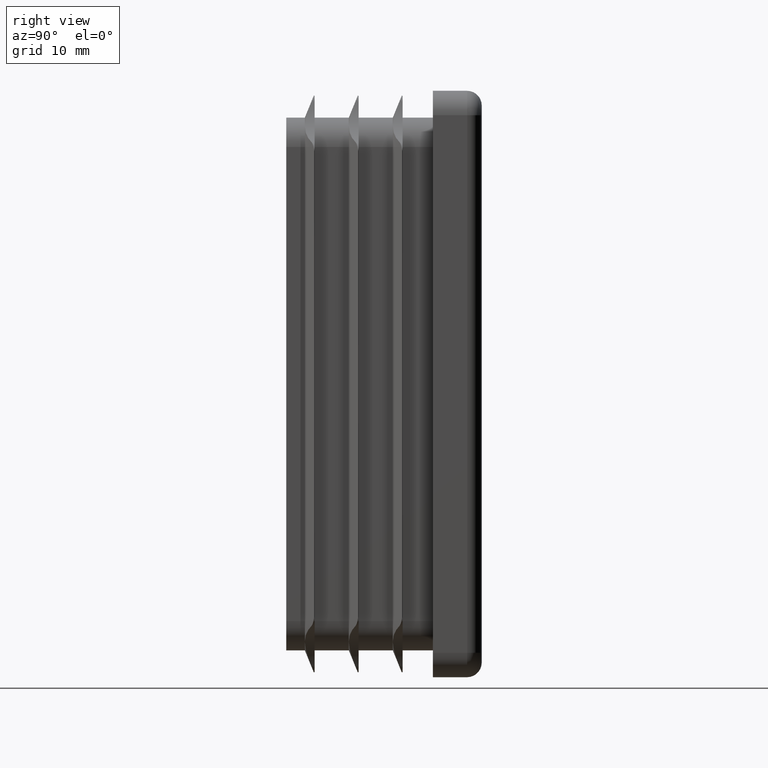
[diagram: clean part render]
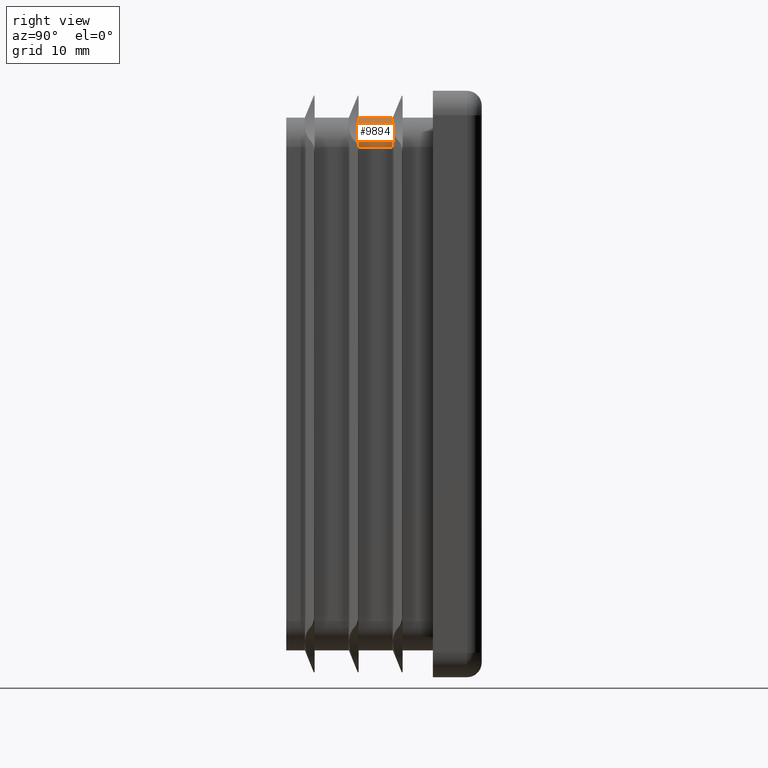
[diagram: same view with one face highlighted and labeled with its STEP entity id]
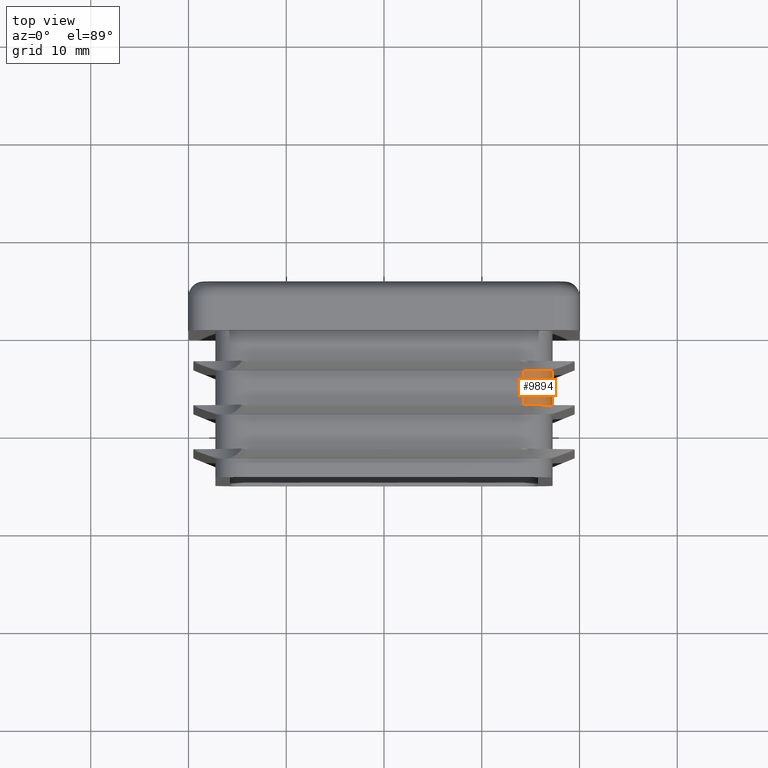
[diagram: same view with one face highlighted and labeled with its STEP entity id]
A machine part, right view. The second image highlights one B-rep face of the part: STEP entity #9894.
A second angle (top view) of the same face is appended — the face is thin or edge-on in the first view.
In plain terms, the highlighted cylindrical surface (edge-blend (fillet) strip) has radius 3 mm, axis along (-0, 1, -0).
Its self-contained STEP definition (entity closure, byte-faithful):
#362 = VECTOR ( 'NONE', #14689, 1000.000000000000000 ) ;
#382 = DIRECTION ( 'NONE',  ( 4.047688110612560405E-15, 0.000000000000000000, 1.000000000000000000 ) ) ;
#973 = CARTESIAN_POINT ( 'NONE',  ( 14.24999999999999822, -15.00000000000000000, 27.25000000000000355 ) ) ;
#981 = VERTEX_POINT ( 'NONE', #17087 ) ;
#1364 = CARTESIAN_POINT ( 'NONE',  ( 16.37132034355967392, -7.600000000000000533, 26.37132034355967036 ) ) ;
#1680 = AXIS2_PLACEMENT_3D ( 'NONE', #12887, #18697, #18756 ) ;
#1882 = DIRECTION ( 'NONE',  ( 0.000000000000000000, 1.000000000000000000, 0.000000000000000000 ) ) ;
#2257 = AXIS2_PLACEMENT_3D ( 'NONE', #15838, #5463, #11313 ) ;
#3160 = CIRCLE ( 'NONE', #10048, 2.999999999999992450 ) ;
#3187 = EDGE_CURVE ( 'NONE', #14528, #12682, #17439, .T. ) ;
#3560 = DIRECTION ( 'NONE',  ( -0.000000000000000000, 1.000000000000000000, -0.000000000000000000 ) ) ;
#4522 = LINE ( 'NONE', #973, #13270 ) ;
#4618 = CARTESIAN_POINT ( 'NONE',  ( 14.24999999999999822, -4.100000000000000533, 24.25000000000000355 ) ) ;
#4711 = CARTESIAN_POINT ( 'NONE',  ( 14.24999999999999822, -4.100000000000000533, 24.25000000000000355 ) ) ;
#5329 = AXIS2_PLACEMENT_3D ( 'NONE', #14057, #3560, #6662 ) ;
#5463 = DIRECTION ( 'NONE',  ( 0.000000000000000000, 1.000000000000000000, 0.000000000000000000 ) ) ;
#5744 = CARTESIAN_POINT ( 'NONE',  ( 17.24999999999999645, -15.00000000000000000, 24.25000000000000000 ) ) ;
#6006 = ORIENTED_EDGE ( 'NONE', *, *, #8293, .F. ) ;
#6168 = EDGE_CURVE ( 'NONE', #14528, #9539, #4522, .T. ) ;
#6431 = EDGE_CURVE ( 'NONE', #9539, #981, #7622, .T. ) ;
#6662 = DIRECTION ( 'NONE',  ( 0.000000000000000000, 0.000000000000000000, 1.000000000000000000 ) ) ;
#7285 = ORIENTED_EDGE ( 'NONE', *, *, #6431, .F. ) ;
#7622 = CIRCLE ( 'NONE', #16725, 2.999999999999992450 ) ;
#8232 = ORIENTED_EDGE ( 'NONE', *, *, #10862, .T. ) ;
#8293 = EDGE_CURVE ( 'NONE', #981, #8629, #3160, .T. ) ;
#8298 = CARTESIAN_POINT ( 'NONE',  ( 14.24999999999999822, -7.600000000000000533, 27.25000000000000355 ) ) ;
#8629 = VERTEX_POINT ( 'NONE', #11547 ) ;
#9539 = VERTEX_POINT ( 'NONE', #17306 ) ;
#9795 = ORIENTED_EDGE ( 'NONE', *, *, #6168, .F. ) ;
#9894 = ADVANCED_FACE ( 'NONE', ( #11930 ), #10309, .T. ) ;
#10048 = AXIS2_PLACEMENT_3D ( 'NONE', #4618, #15003, #13705 ) ;
#10309 = CYLINDRICAL_SURFACE ( 'NONE', #5329, 2.999999999999999112 ) ;
#10862 = EDGE_CURVE ( 'NONE', #12682, #17308, #15518, .T. ) ;
#11313 = DIRECTION ( 'NONE',  ( 4.047688110612494930E-15, 0.000000000000000000, 1.000000000000000000 ) ) ;
#11347 = DIRECTION ( 'NONE',  ( -0.000000000000000000, 1.000000000000000000, -0.000000000000000000 ) ) ;
#11547 = CARTESIAN_POINT ( 'NONE',  ( 17.24999999999999645, -4.099999999999997868, 24.25000000000000000 ) ) ;
#11724 = ORIENTED_EDGE ( 'NONE', *, *, #11864, .T. ) ;
#11864 = EDGE_CURVE ( 'NONE', #17308, #8629, #17501, .T. ) ;
#11930 = FACE_OUTER_BOUND ( 'NONE', #15768, .T. ) ;
#12682 = VERTEX_POINT ( 'NONE', #1364 ) ;
#12887 = CARTESIAN_POINT ( 'NONE',  ( 14.24999999999999822, -7.600000000000000533, 24.25000000000000355 ) ) ;
#13270 = VECTOR ( 'NONE', #11347, 1000.000000000000000 ) ;
#13321 = CARTESIAN_POINT ( 'NONE',  ( 17.24999999999999645, -7.600000000000000533, 24.25000000000000000 ) ) ;
#13705 = DIRECTION ( 'NONE',  ( 4.047688110612560405E-15, 0.000000000000000000, 1.000000000000000000 ) ) ;
#14057 = CARTESIAN_POINT ( 'NONE',  ( 14.24999999999999822, -15.00000000000000000, 24.25000000000000355 ) ) ;
#14528 = VERTEX_POINT ( 'NONE', #8298 ) ;
#14689 = DIRECTION ( 'NONE',  ( -0.000000000000000000, 1.000000000000000000, -0.000000000000000000 ) ) ;
#15003 = DIRECTION ( 'NONE',  ( 0.000000000000000000, 1.000000000000000000, 0.000000000000000000 ) ) ;
#15518 = CIRCLE ( 'NONE', #2257, 3.000000000000040856 ) ;
#15768 = EDGE_LOOP ( 'NONE', ( #6006, #7285, #9795, #17715, #8232, #11724 ) ) ;
#15838 = CARTESIAN_POINT ( 'NONE',  ( 14.24999999999999822, -7.600000000000000533, 24.25000000000000355 ) ) ;
#16725 = AXIS2_PLACEMENT_3D ( 'NONE', #4711, #1882, #382 ) ;
#17087 = CARTESIAN_POINT ( 'NONE',  ( 16.37132034355964905, -4.099999999999995204, 26.37132034355964905 ) ) ;
#17306 = CARTESIAN_POINT ( 'NONE',  ( 14.24999999999999822, -4.099999999999997868, 27.25000000000000355 ) ) ;
#17308 = VERTEX_POINT ( 'NONE', #13321 ) ;
#17439 = CIRCLE ( 'NONE', #1680, 3.000000000000040856 ) ;
#17501 = LINE ( 'NONE', #5744, #362 ) ;
#17715 = ORIENTED_EDGE ( 'NONE', *, *, #3187, .T. ) ;
#18697 = DIRECTION ( 'NONE',  ( 0.000000000000000000, 1.000000000000000000, 0.000000000000000000 ) ) ;
#18756 = DIRECTION ( 'NONE',  ( 4.047688110612494930E-15, 0.000000000000000000, 1.000000000000000000 ) ) ;